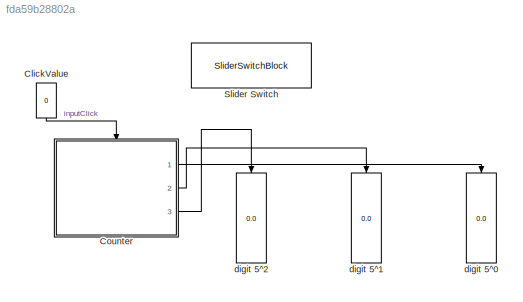
MODEL slx_fda59b28802a
KIND model
CONFIG AbsTol = auto
CONFIG EnableMultiTasking = off
CONFIG FixedStep = auto
CONFIG MaxStep = auto
CONFIG MinStep = auto
CONFIG RelTol = 1e-3
CONFIG SampleTimeConstraint = Unconstrained
CONFIG SolverName = VariableStepAuto
CONFIG StartTime = 0.0
CONFIG StopTime = inf
BLOCK [Constant] ClickValue
  NameLocation = left
  Value = 0
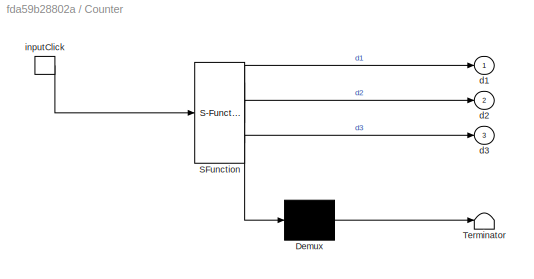
BLOCK [SubSystem] Counter
  ErrorFcn = Stateflow.Translate.translate
  PermitHierarchicalResolution = ExplicitOnly
  Ports = [0, 3, 0, 1]
  RequestExecContextInheritance = off
  SFBlockType = Chart
  TreatAsAtomicUnit = on
BLOCK [Demux] Counter/ Demux 
  Outputs = 1
  Ports = [1, 1]
BLOCK [S-Function] Counter/ SFunction 
  EnableBusSupport = on
  FunctionName = sf_sfun
  PortCounts = [1 4]
  Ports = [1, 4]
  SFcnIsStateOwnerBlock = off
  SFunctionDeploymentMode = off
  Tag = Stateflow S-Function 1
BLOCK [Terminator] Counter/ Terminator 
BLOCK [Outport] Counter/d1
  VectorParamsAs1DForOutWhenUnconnected = off
BLOCK [Outport] Counter/d2
  Port = 2
BLOCK [Outport] Counter/d3
  Port = 3
BLOCK [TriggerPort] Counter/inputClick
  Ports = [0, 1]
  ShowOutputPort = on
  TriggerType = either
  VariantControl = Variant
BLOCK [SliderSwitchBlock] Slider Switch
  LabelPosition = Bottom
BLOCK [Display] digit 5^0
  Decimation = 1
  NameLocation = left
  Ports = [1]
BLOCK [Display] digit 5^1
  Decimation = 1
  NameLocation = left
  Ports = [1]
BLOCK [Display] digit 5^2
  Decimation = 1
  NameLocation = left
  Ports = [1]
LINE ClickValue:1 -> Counter:trigger
LINE Counter:1 -> digit 5^0:1
LINE Counter:2 -> digit 5^1:1
LINE Counter:3 -> digit 5^2:1
CHART Counter states=18 transitions=18
  STATE_LABEL 'digit1'
  STATE_LABEL 'one\nen: d1 = 1;'
  STATE_LABEL 'two\nen: d1 = 2;'
  STATE_LABEL 'zero\nen: d1 = 0;'
  STATE_LABEL 'four\nen: d1 = 4;'
  STATE_LABEL 'three\nen: d1 = 3;'
  STATE_LABEL 'inputClick'
  STATE_LABEL 'inputClick'
  STATE_LABEL 'inputClick /{digit2.inc2;}'
  STATE_LABEL 'inputClick'
  STATE_LABEL 'inputClick'
  STATE_LABEL 'one\nen: d1 = 1;'
  STATE_LABEL 'two\nen: d1 = 2;'
  STATE_LABEL 'zero\nen: d1 = 0;'
  STATE_LABEL 'four\nen: d1 = 4;'
  STATE_LABEL 'three\nen: d1 = 3;'
  STATE_LABEL 'digit2'
  STATE_LABEL 'one\nen: d2 = 1;'
  STATE_LABEL 'two\nen: d2 = 2;'
  STATE_LABEL 'zero\nen: d2 = 0;'
  STATE_LABEL 'four\nen: d2 = 4;'
  STATE_LABEL 'three\nen: d2 = 3;'
  STATE_LABEL 'inc2'
  STATE_LABEL 'inc2'
  STATE_LABEL 'inc2 /{digit3.inc3;}'
  STATE_LABEL 'inc2'
  STATE_LABEL 'inc2'
  STATE_LABEL 'one\nen: d2 = 1;'
  STATE_LABEL 'two\nen: d2 = 2;'
  STATE_LABEL 'zero\nen: d2 = 0;'
  STATE_LABEL 'four\nen: d2 = 4;'
  STATE_LABEL 'three\nen: d2 = 3;'
  STATE_LABEL 'digit3'
  STATE_LABEL 'one\nen: d3 = 1;'
  STATE_LABEL 'two\nen: d3 = 2;'
  STATE_LABEL 'zero\nen: d3 = 0;'
  STATE_LABEL 'four\nen: d3 = 4;'
  STATE_LABEL 'three\nen: d3 = 3;'
  STATE_LABEL 'inc3'
  STATE_LABEL 'inc3'
CHART  states=0 transitions=0
